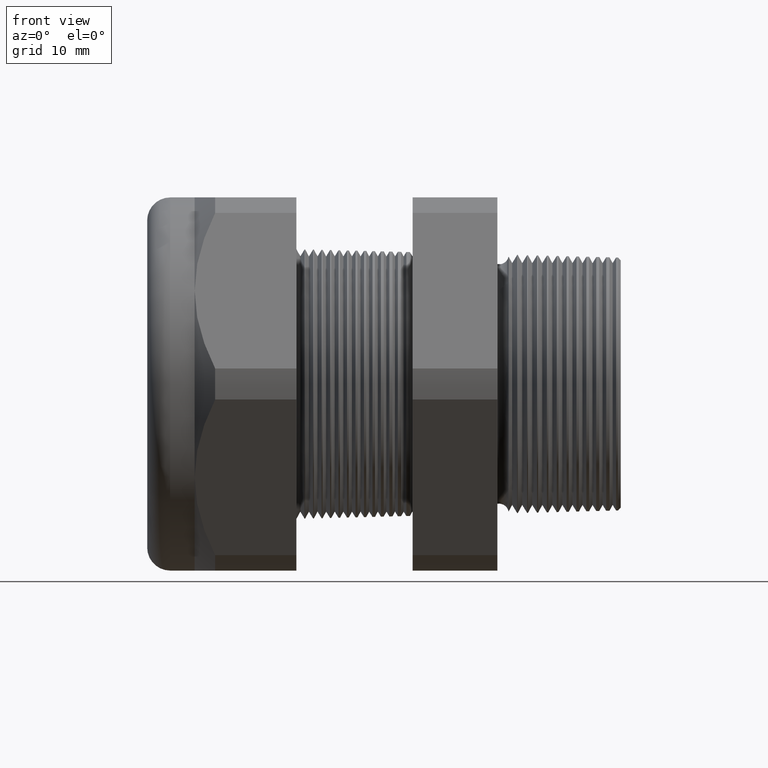
[diagram: clean part render]
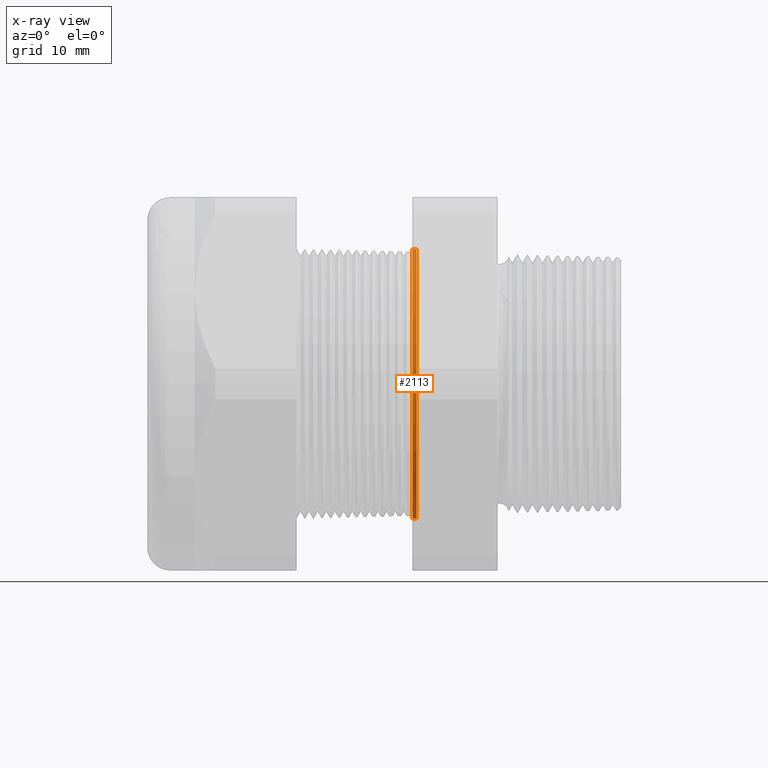
[diagram: x-ray — body ghosted, one internal face saturated and labeled with its STEP entity id]
A machine part, front view, then the same camera in x-ray: the body is ghosted and one INTERNAL B-rep face — a face not visible from any outside direction — is saturated and labeled: STEP entity #2113.
In plain terms, the highlighted conical surface has half-angle 1.5 deg.
Its self-contained STEP definition (entity closure, byte-faithful):
#170 = VERTEX_POINT ( 'NONE', #2048 ) ;
#176 = VERTEX_POINT ( 'NONE', #2045 ) ;
#187 = VERTEX_POINT ( 'NONE', #2178 ) ;
#189 = EDGE_CURVE ( 'NONE', #176, #170, #2177, .T. ) ;
#712 = VERTEX_POINT ( 'NONE', #3160 ) ;
#720 = ORIENTED_EDGE ( 'NONE', *, *, #724, .F. ) ;
#721 = EDGE_CURVE ( 'NONE', #187, #712, #3210, .T. ) ;
#724 = EDGE_CURVE ( 'NONE', #176, #712, #3201, .T. ) ;
#2045 = CARTESIAN_POINT ( 'NONE',  ( -0.5914573393463203900, 5.746585748258992000E-017, 0.4692443365923945100 ) ) ;
#2048 = CARTESIAN_POINT ( 'NONE',  ( -0.5914573393463203900, 0.0000000000000000000, -0.4692443365923945100 ) ) ;
#2102 = EDGE_LOOP ( 'NONE', ( #2114, #2110, #2120, #720 ) ) ;
#2110 = ORIENTED_EDGE ( 'NONE', *, *, #5667, .T. ) ;
#2113 = ADVANCED_FACE ( 'NONE', ( #4951 ), #4950, .F. ) ;
#2114 = ORIENTED_EDGE ( 'NONE', *, *, #189, .T. ) ;
#2120 = ORIENTED_EDGE ( 'NONE', *, *, #721, .T. ) ;
#2173 = DIRECTION ( 'NONE',  ( 0.0000000000000000000, 0.0000000000000000000, -1.000000000000000000 ) ) ;
#2174 = DIRECTION ( 'NONE',  ( 1.000000000000000000, 0.0000000000000000000, 0.0000000000000000000 ) ) ;
#2175 = CARTESIAN_POINT ( 'NONE',  ( -0.5914573393463203900, 0.0000000000000000000, 0.0000000000000000000 ) ) ;
#2176 = AXIS2_PLACEMENT_3D ( 'NONE', #2175, #2174, #2173 ) ;
#2177 = CIRCLE ( 'NONE', #2176, 0.4692443365923945100 ) ;
#2178 = CARTESIAN_POINT ( 'NONE',  ( -0.6052755905511809600, 5.751017054842014700E-017, -0.4696061802346682100 ) ) ;
#3160 = CARTESIAN_POINT ( 'NONE',  ( -0.6052755905511809600, 0.0000000000000000000, 0.4696061802346682100 ) ) ;
#3198 = DIRECTION ( 'NONE',  ( -0.9996573249755573700, 0.0000000000000000000, 0.02617694830786618600 ) ) ;
#3199 = VECTOR ( 'NONE', #3198, 39.37007874015748100 ) ;
#3200 = CARTESIAN_POINT ( 'NONE',  ( -0.5914573393463203900, 0.0000000000000000000, 0.4692443365923945100 ) ) ;
#3201 = LINE ( 'NONE', #3200, #3199 ) ;
#3206 = DIRECTION ( 'NONE',  ( 0.0000000000000000000, 0.0000000000000000000, 1.000000000000000000 ) ) ;
#3207 = DIRECTION ( 'NONE',  ( -1.000000000000000000, 0.0000000000000000000, 0.0000000000000000000 ) ) ;
#3208 = CARTESIAN_POINT ( 'NONE',  ( -0.6052755905511809600, 0.0000000000000000000, 0.0000000000000000000 ) ) ;
#3209 = AXIS2_PLACEMENT_3D ( 'NONE', #3208, #3207, #3206 ) ;
#3210 = CIRCLE ( 'NONE', #3209, 0.4696061802346682700 ) ;
#4946 = DIRECTION ( 'NONE',  ( 0.0000000000000000000, 0.0000000000000000000, 1.000000000000000000 ) ) ;
#4947 = DIRECTION ( 'NONE',  ( -1.000000000000000000, 0.0000000000000000000, 0.0000000000000000000 ) ) ;
#4948 = CARTESIAN_POINT ( 'NONE',  ( -0.5914573393463203900, 0.0000000000000000000, 0.0000000000000000000 ) ) ;
#4949 = AXIS2_PLACEMENT_3D ( 'NONE', #4948, #4947, #4946 ) ;
#4950 = CONICAL_SURFACE ( 'NONE', #4949, 0.4692443365923945100, 0.02617993877990797800 ) ;
#4951 = FACE_OUTER_BOUND ( 'NONE', #2102, .T. ) ;
#5370 = DIRECTION ( 'NONE',  ( -0.9996573249755573700, 3.205751595667405400E-018, -0.02617694830786618600 ) ) ;
#5371 = VECTOR ( 'NONE', #5370, 39.37007874015748100 ) ;
#5373 = CARTESIAN_POINT ( 'NONE',  ( -0.5914573393463203900, 5.746585748258992000E-017, -0.4692443365923945100 ) ) ;
#5374 = LINE ( 'NONE', #5373, #5371 ) ;
#5667 = EDGE_CURVE ( 'NONE', #170, #187, #5374, .T. ) ;